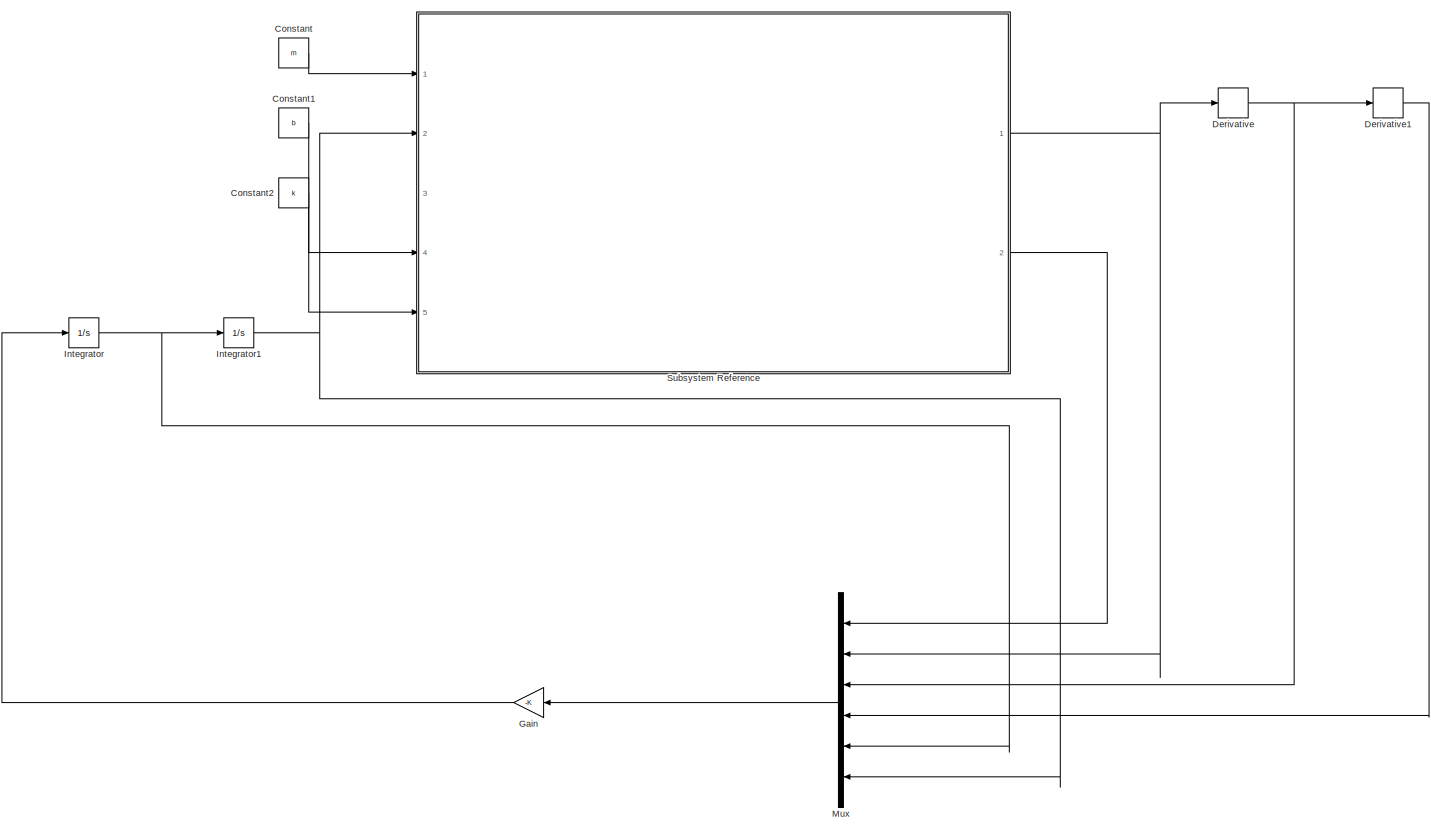
[diagram: root canvas - part 1/1, most of the canvas]
MODEL slx_37528da667ec
KIND model
CONFIG AbsTol = auto
CONFIG EnableMultiTasking = off
CONFIG FixedStep = auto
CONFIG MaxStep = auto
CONFIG MinStep = auto
CONFIG RelTol = 1e-3
CONFIG SampleTimeConstraint = Unconstrained
CONFIG SolverName = VariableStepAuto
CONFIG StartTime = 0.0
CONFIG StopTime = 10.0
BLOCK [Constant] Constant
  Value = m
BLOCK [Constant] Constant1
  Value = b
BLOCK [Constant] Constant2
  Value = k
BLOCK [Derivative] Derivative
BLOCK [Derivative] Derivative1
BLOCK [Gain] Gain
  Gain = -K
  Multiplication = Matrix(K*u) (u vector)
BLOCK [Integrator] Integrator
  Ports = [1, 1]
BLOCK [Integrator] Integrator1
  Ports = [1, 1]
BLOCK [Mux] Mux
  DisplayOption = bar
  Inputs = 6
  Ports = [6, 1]
BLOCK [SubSystem] Subsystem Reference
  PortSchema = {"entries":[{"content":{"sides":[{"content":{"connectorIds":["In1","In4","In5","In3","In2"]},"type":"ConnectorPlacement.EquallySpacedRectSide","uuid":"1889bd1a-0e98-4a12-b4d5-f2bbff5a3f70"},{"content":{"connectorIds":["Out1","Out2"],"side":"RIGHT"},"type":"ConnectorPlacement.EquallySpacedRectSide","uuid":"a0e9e75d-0456-4878-81af-8c9606bb022b"},{"content":{"connectorIds":[],"side":"TOP"},"type":"Co...<+415ch>
  Ports = [5, 2]
  ReferencedSubsystem = quarter_suspension_subsystem
  RequestExecContextInheritance = off
LINE Constant1:1 -> Subsystem Reference:4
LINE Constant2:1 -> Subsystem Reference:5
LINE Constant:1 -> Subsystem Reference:1
LINE Derivative1:1 -> Mux:4
NET Derivative:1 -> Derivative1:1, Mux:3
LINE Gain:1 -> Integrator:1
NET Integrator1:1 -> Mux:6, Subsystem Reference:2
NET Integrator:1 -> Integrator1:1, Mux:5
LINE Mux:1 -> Gain:1
NET Subsystem Reference:1 -> Derivative:1, Mux:2
LINE Subsystem Reference:2 -> Mux:1
note: NET lines group one-source signal fan-out (src -> all destinations, sorted); 1:1 wires keep LINE
